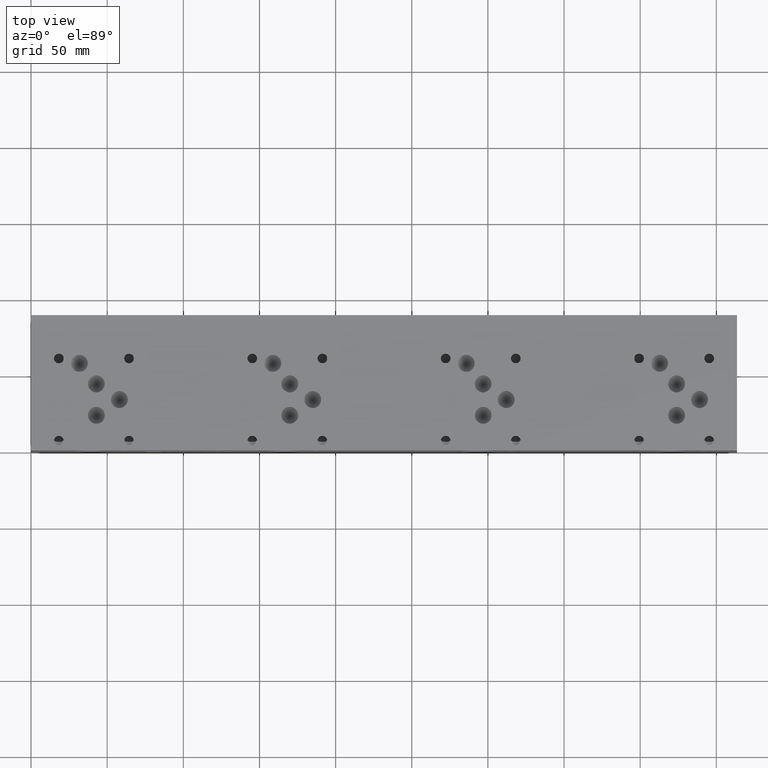
[diagram: clean part render]
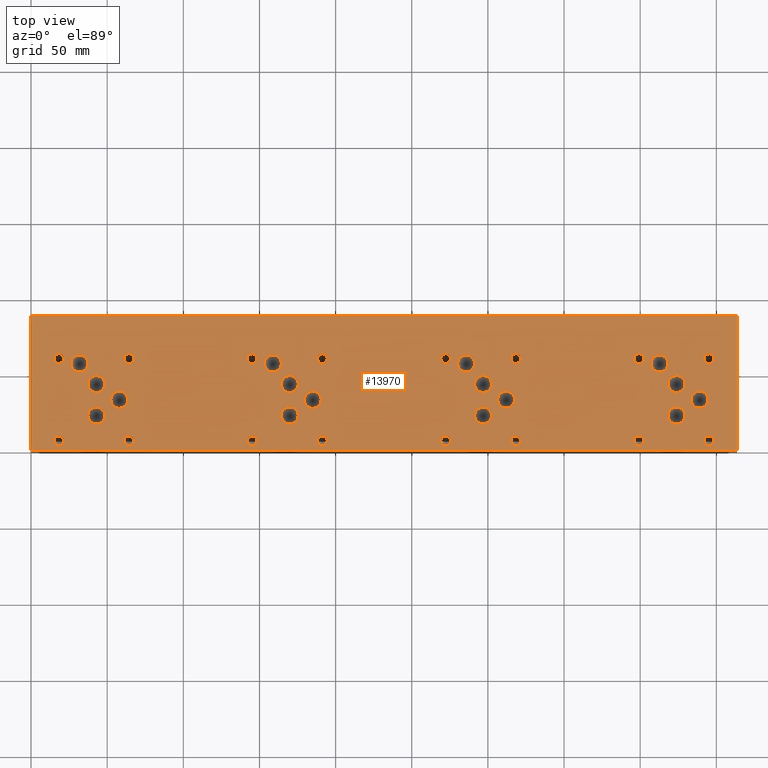
[diagram: same view with one face highlighted and labeled with its STEP entity id]
A machine part, top view. The second image highlights one B-rep face of the part: STEP entity #13970.
In plain terms, the highlighted planar face has unit normal (0, 0, 1).
Its self-contained STEP definition (entity closure, byte-faithful):
#948=CIRCLE('',#14558,5.5626);
#949=CIRCLE('',#14559,5.5626);
#952=CIRCLE('',#14564,5.5626);
#953=CIRCLE('',#14565,5.5626);
#956=CIRCLE('',#14570,5.5626);
#957=CIRCLE('',#14571,5.5626);
#960=CIRCLE('',#14576,5.5626);
#961=CIRCLE('',#14577,5.5626);
#964=CIRCLE('',#14582,5.5626);
#965=CIRCLE('',#14583,5.5626);
#968=CIRCLE('',#14588,5.5626);
#969=CIRCLE('',#14589,5.5626);
#972=CIRCLE('',#14594,5.5626);
#973=CIRCLE('',#14595,5.5626);
#976=CIRCLE('',#14600,5.5626);
#977=CIRCLE('',#14601,5.5626);
#980=CIRCLE('',#14606,5.5626);
#981=CIRCLE('',#14607,5.5626);
#984=CIRCLE('',#14612,5.5626);
#985=CIRCLE('',#14613,5.5626);
#988=CIRCLE('',#14618,5.5626);
#989=CIRCLE('',#14619,5.5626);
#992=CIRCLE('',#14624,5.5626);
#993=CIRCLE('',#14625,5.5626);
#996=CIRCLE('',#14630,5.5626);
#997=CIRCLE('',#14631,5.5626);
#1000=CIRCLE('',#14636,5.5626);
#1001=CIRCLE('',#14637,5.5626);
#1004=CIRCLE('',#14642,5.5626);
#1005=CIRCLE('',#14643,5.5626);
#1008=CIRCLE('',#14648,5.5626);
#1009=CIRCLE('',#14649,5.5626);
#1015=CIRCLE('',#14658,3.175);
#1016=CIRCLE('',#14659,3.175);
#1022=CIRCLE('',#14669,3.175);
#1023=CIRCLE('',#14670,3.175);
#1029=CIRCLE('',#14680,3.175);
#1030=CIRCLE('',#14681,3.175);
#1036=CIRCLE('',#14691,3.175);
#1037=CIRCLE('',#14692,3.175);
#1043=CIRCLE('',#14702,3.175);
#1044=CIRCLE('',#14703,3.175);
#1050=CIRCLE('',#14713,3.175);
#1051=CIRCLE('',#14714,3.175);
#1057=CIRCLE('',#14724,3.175);
#1058=CIRCLE('',#14725,3.175);
#1064=CIRCLE('',#14735,3.175);
#1065=CIRCLE('',#14736,3.175);
#1071=CIRCLE('',#14746,3.175);
#1072=CIRCLE('',#14747,3.175);
#1078=CIRCLE('',#14757,3.175);
#1079=CIRCLE('',#14758,3.175);
#1085=CIRCLE('',#14768,3.175);
#1086=CIRCLE('',#14769,3.175);
#1092=CIRCLE('',#14779,3.175);
#1093=CIRCLE('',#14780,3.175);
#1099=CIRCLE('',#14790,3.175);
#1100=CIRCLE('',#14791,3.175);
#1106=CIRCLE('',#14801,3.175);
#1107=CIRCLE('',#14802,3.175);
#1113=CIRCLE('',#14812,3.175);
#1114=CIRCLE('',#14813,3.175);
#1120=CIRCLE('',#14823,3.175);
#1121=CIRCLE('',#14824,3.175);
#1564=FACE_BOUND('',#3139,.T.);
#1565=FACE_BOUND('',#3140,.T.);
#1566=FACE_BOUND('',#3141,.T.);
#1567=FACE_BOUND('',#3142,.T.);
#1568=FACE_BOUND('',#3143,.T.);
#1569=FACE_BOUND('',#3144,.T.);
#1570=FACE_BOUND('',#3145,.T.);
#1571=FACE_BOUND('',#3146,.T.);
#1572=FACE_BOUND('',#3147,.T.);
#1573=FACE_BOUND('',#3148,.T.);
#1574=FACE_BOUND('',#3149,.T.);
#1575=FACE_BOUND('',#3150,.T.);
#1576=FACE_BOUND('',#3151,.T.);
#1577=FACE_BOUND('',#3152,.T.);
#1578=FACE_BOUND('',#3153,.T.);
#1579=FACE_BOUND('',#3154,.T.);
#1580=FACE_BOUND('',#3155,.T.);
#1581=FACE_BOUND('',#3156,.T.);
#1582=FACE_BOUND('',#3157,.T.);
#1583=FACE_BOUND('',#3158,.T.);
#1584=FACE_BOUND('',#3159,.T.);
#1585=FACE_BOUND('',#3160,.T.);
#1586=FACE_BOUND('',#3161,.T.);
#1587=FACE_BOUND('',#3162,.T.);
#1588=FACE_BOUND('',#3163,.T.);
#1589=FACE_BOUND('',#3164,.T.);
#1590=FACE_BOUND('',#3165,.T.);
#1591=FACE_BOUND('',#3166,.T.);
#1592=FACE_BOUND('',#3167,.T.);
#1593=FACE_BOUND('',#3168,.T.);
#1594=FACE_BOUND('',#3169,.T.);
#1595=FACE_BOUND('',#3170,.T.);
#2313=FACE_OUTER_BOUND('',#3138,.T.);
#3138=EDGE_LOOP('',(#12761,#12762,#12763,#12764));
#3139=EDGE_LOOP('',(#12765,#12766));
#3140=EDGE_LOOP('',(#12767,#12768));
#3141=EDGE_LOOP('',(#12769,#12770));
#3142=EDGE_LOOP('',(#12771,#12772));
#3143=EDGE_LOOP('',(#12773,#12774));
#3144=EDGE_LOOP('',(#12775,#12776));
#3145=EDGE_LOOP('',(#12777,#12778));
#3146=EDGE_LOOP('',(#12779,#12780));
#3147=EDGE_LOOP('',(#12781,#12782));
#3148=EDGE_LOOP('',(#12783,#12784));
#3149=EDGE_LOOP('',(#12785,#12786));
#3150=EDGE_LOOP('',(#12787,#12788));
#3151=EDGE_LOOP('',(#12789,#12790));
#3152=EDGE_LOOP('',(#12791,#12792));
#3153=EDGE_LOOP('',(#12793,#12794));
#3154=EDGE_LOOP('',(#12795,#12796));
#3155=EDGE_LOOP('',(#12797,#12798));
#3156=EDGE_LOOP('',(#12799,#12800));
#3157=EDGE_LOOP('',(#12801,#12802));
#3158=EDGE_LOOP('',(#12803,#12804));
#3159=EDGE_LOOP('',(#12805,#12806));
#3160=EDGE_LOOP('',(#12807,#12808));
#3161=EDGE_LOOP('',(#12809,#12810));
#3162=EDGE_LOOP('',(#12811,#12812));
#3163=EDGE_LOOP('',(#12813,#12814));
#3164=EDGE_LOOP('',(#12815,#12816));
#3165=EDGE_LOOP('',(#12817,#12818));
#3166=EDGE_LOOP('',(#12819,#12820));
#3167=EDGE_LOOP('',(#12821,#12822));
#3168=EDGE_LOOP('',(#12823,#12824));
#3169=EDGE_LOOP('',(#12825,#12826));
#3170=EDGE_LOOP('',(#12827,#12828));
#3207=LINE('',#17887,#4493);
#4175=LINE('',#22415,#5461);
#4235=LINE('',#22688,#5521);
#4457=LINE('',#23966,#5743);
#4493=VECTOR('',#14895,10.);
#5461=VECTOR('',#16527,10.);
#5521=VECTOR('',#16641,10.);
#5743=VECTOR('',#17803,10.);
#5768=VERTEX_POINT('',#17884);
#5769=VERTEX_POINT('',#17886);
#6637=VERTEX_POINT('',#22414);
#6695=VERTEX_POINT('',#22686);
#6877=VERTEX_POINT('',#23411);
#6878=VERTEX_POINT('',#23412);
#6882=VERTEX_POINT('',#23424);
#6883=VERTEX_POINT('',#23425);
#6887=VERTEX_POINT('',#23437);
#6888=VERTEX_POINT('',#23438);
#6892=VERTEX_POINT('',#23450);
#6893=VERTEX_POINT('',#23451);
#6897=VERTEX_POINT('',#23463);
#6898=VERTEX_POINT('',#23464);
#6902=VERTEX_POINT('',#23476);
#6903=VERTEX_POINT('',#23477);
#6907=VERTEX_POINT('',#23489);
#6908=VERTEX_POINT('',#23490);
#6912=VERTEX_POINT('',#23502);
#6913=VERTEX_POINT('',#23503);
#6917=VERTEX_POINT('',#23515);
#6918=VERTEX_POINT('',#23516);
#6922=VERTEX_POINT('',#23528);
#6923=VERTEX_POINT('',#23529);
#6927=VERTEX_POINT('',#23541);
#6928=VERTEX_POINT('',#23542);
#6932=VERTEX_POINT('',#23554);
#6933=VERTEX_POINT('',#23555);
#6937=VERTEX_POINT('',#23567);
#6938=VERTEX_POINT('',#23568);
#6942=VERTEX_POINT('',#23580);
#6943=VERTEX_POINT('',#23581);
#6947=VERTEX_POINT('',#23593);
#6948=VERTEX_POINT('',#23594);
#6952=VERTEX_POINT('',#23606);
#6953=VERTEX_POINT('',#23607);
#6960=VERTEX_POINT('',#23626);
#6961=VERTEX_POINT('',#23627);
#6968=VERTEX_POINT('',#23648);
#6969=VERTEX_POINT('',#23649);
#6976=VERTEX_POINT('',#23670);
#6977=VERTEX_POINT('',#23671);
#6984=VERTEX_POINT('',#23692);
#6985=VERTEX_POINT('',#23693);
#6992=VERTEX_POINT('',#23714);
#6993=VERTEX_POINT('',#23715);
#7000=VERTEX_POINT('',#23736);
#7001=VERTEX_POINT('',#23737);
#7008=VERTEX_POINT('',#23758);
#7009=VERTEX_POINT('',#23759);
#7016=VERTEX_POINT('',#23780);
#7017=VERTEX_POINT('',#23781);
#7024=VERTEX_POINT('',#23802);
#7025=VERTEX_POINT('',#23803);
#7032=VERTEX_POINT('',#23824);
#7033=VERTEX_POINT('',#23825);
#7040=VERTEX_POINT('',#23846);
#7041=VERTEX_POINT('',#23847);
#7048=VERTEX_POINT('',#23868);
#7049=VERTEX_POINT('',#23869);
#7056=VERTEX_POINT('',#23890);
#7057=VERTEX_POINT('',#23891);
#7064=VERTEX_POINT('',#23912);
#7065=VERTEX_POINT('',#23913);
#7072=VERTEX_POINT('',#23934);
#7073=VERTEX_POINT('',#23935);
#7080=VERTEX_POINT('',#23956);
#7081=VERTEX_POINT('',#23957);
#7117=EDGE_CURVE('',#5769,#5768,#3207,.T.);
#8401=EDGE_CURVE('',#6637,#5769,#4175,.T.);
#8485=EDGE_CURVE('',#5768,#6695,#4235,.T.);
#8744=EDGE_CURVE('',#6877,#6878,#948,.T.);
#8745=EDGE_CURVE('',#6878,#6877,#949,.T.);
#8750=EDGE_CURVE('',#6882,#6883,#952,.T.);
#8751=EDGE_CURVE('',#6883,#6882,#953,.T.);
#8756=EDGE_CURVE('',#6887,#6888,#956,.T.);
#8757=EDGE_CURVE('',#6888,#6887,#957,.T.);
#8762=EDGE_CURVE('',#6892,#6893,#960,.T.);
#8763=EDGE_CURVE('',#6893,#6892,#961,.T.);
#8768=EDGE_CURVE('',#6897,#6898,#964,.T.);
#8769=EDGE_CURVE('',#6898,#6897,#965,.T.);
#8774=EDGE_CURVE('',#6902,#6903,#968,.T.);
#8775=EDGE_CURVE('',#6903,#6902,#969,.T.);
#8780=EDGE_CURVE('',#6907,#6908,#972,.T.);
#8781=EDGE_CURVE('',#6908,#6907,#973,.T.);
#8786=EDGE_CURVE('',#6912,#6913,#976,.T.);
#8787=EDGE_CURVE('',#6913,#6912,#977,.T.);
#8792=EDGE_CURVE('',#6917,#6918,#980,.T.);
#8793=EDGE_CURVE('',#6918,#6917,#981,.T.);
#8798=EDGE_CURVE('',#6922,#6923,#984,.T.);
#8799=EDGE_CURVE('',#6923,#6922,#985,.T.);
#8804=EDGE_CURVE('',#6927,#6928,#988,.T.);
#8805=EDGE_CURVE('',#6928,#6927,#989,.T.);
#8810=EDGE_CURVE('',#6932,#6933,#992,.T.);
#8811=EDGE_CURVE('',#6933,#6932,#993,.T.);
#8816=EDGE_CURVE('',#6937,#6938,#996,.T.);
#8817=EDGE_CURVE('',#6938,#6937,#997,.T.);
#8822=EDGE_CURVE('',#6942,#6943,#1000,.T.);
#8823=EDGE_CURVE('',#6943,#6942,#1001,.T.);
#8828=EDGE_CURVE('',#6947,#6948,#1004,.T.);
#8829=EDGE_CURVE('',#6948,#6947,#1005,.T.);
#8834=EDGE_CURVE('',#6952,#6953,#1008,.T.);
#8835=EDGE_CURVE('',#6953,#6952,#1009,.T.);
#8843=EDGE_CURVE('',#6960,#6961,#1015,.T.);
#8844=EDGE_CURVE('',#6961,#6960,#1016,.T.);
#8853=EDGE_CURVE('',#6968,#6969,#1022,.T.);
#8854=EDGE_CURVE('',#6969,#6968,#1023,.T.);
#8863=EDGE_CURVE('',#6976,#6977,#1029,.T.);
#8864=EDGE_CURVE('',#6977,#6976,#1030,.T.);
#8873=EDGE_CURVE('',#6984,#6985,#1036,.T.);
#8874=EDGE_CURVE('',#6985,#6984,#1037,.T.);
#8883=EDGE_CURVE('',#6992,#6993,#1043,.T.);
#8884=EDGE_CURVE('',#6993,#6992,#1044,.T.);
#8893=EDGE_CURVE('',#7000,#7001,#1050,.T.);
#8894=EDGE_CURVE('',#7001,#7000,#1051,.T.);
#8903=EDGE_CURVE('',#7008,#7009,#1057,.T.);
#8904=EDGE_CURVE('',#7009,#7008,#1058,.T.);
#8913=EDGE_CURVE('',#7016,#7017,#1064,.T.);
#8914=EDGE_CURVE('',#7017,#7016,#1065,.T.);
#8923=EDGE_CURVE('',#7024,#7025,#1071,.T.);
#8924=EDGE_CURVE('',#7025,#7024,#1072,.T.);
#8933=EDGE_CURVE('',#7032,#7033,#1078,.T.);
#8934=EDGE_CURVE('',#7033,#7032,#1079,.T.);
#8943=EDGE_CURVE('',#7040,#7041,#1085,.T.);
#8944=EDGE_CURVE('',#7041,#7040,#1086,.T.);
#8953=EDGE_CURVE('',#7048,#7049,#1092,.T.);
#8954=EDGE_CURVE('',#7049,#7048,#1093,.T.);
#8963=EDGE_CURVE('',#7056,#7057,#1099,.T.);
#8964=EDGE_CURVE('',#7057,#7056,#1100,.T.);
#8973=EDGE_CURVE('',#7064,#7065,#1106,.T.);
#8974=EDGE_CURVE('',#7065,#7064,#1107,.T.);
#8983=EDGE_CURVE('',#7072,#7073,#1113,.T.);
#8984=EDGE_CURVE('',#7073,#7072,#1114,.T.);
#8993=EDGE_CURVE('',#7080,#7081,#1120,.T.);
#8994=EDGE_CURVE('',#7081,#7080,#1121,.T.);
#8998=EDGE_CURVE('',#6695,#6637,#4457,.T.);
#12761=ORIENTED_EDGE('',*,*,#7117,.T.);
#12762=ORIENTED_EDGE('',*,*,#8485,.T.);
#12763=ORIENTED_EDGE('',*,*,#8998,.T.);
#12764=ORIENTED_EDGE('',*,*,#8401,.T.);
#12765=ORIENTED_EDGE('',*,*,#8744,.T.);
#12766=ORIENTED_EDGE('',*,*,#8745,.T.);
#12767=ORIENTED_EDGE('',*,*,#8750,.T.);
#12768=ORIENTED_EDGE('',*,*,#8751,.T.);
#12769=ORIENTED_EDGE('',*,*,#8756,.T.);
#12770=ORIENTED_EDGE('',*,*,#8757,.T.);
#12771=ORIENTED_EDGE('',*,*,#8762,.T.);
#12772=ORIENTED_EDGE('',*,*,#8763,.T.);
#12773=ORIENTED_EDGE('',*,*,#8768,.T.);
#12774=ORIENTED_EDGE('',*,*,#8769,.T.);
#12775=ORIENTED_EDGE('',*,*,#8774,.T.);
#12776=ORIENTED_EDGE('',*,*,#8775,.T.);
#12777=ORIENTED_EDGE('',*,*,#8780,.T.);
#12778=ORIENTED_EDGE('',*,*,#8781,.T.);
#12779=ORIENTED_EDGE('',*,*,#8786,.T.);
#12780=ORIENTED_EDGE('',*,*,#8787,.T.);
#12781=ORIENTED_EDGE('',*,*,#8792,.T.);
#12782=ORIENTED_EDGE('',*,*,#8793,.T.);
#12783=ORIENTED_EDGE('',*,*,#8798,.T.);
#12784=ORIENTED_EDGE('',*,*,#8799,.T.);
#12785=ORIENTED_EDGE('',*,*,#8804,.T.);
#12786=ORIENTED_EDGE('',*,*,#8805,.T.);
#12787=ORIENTED_EDGE('',*,*,#8810,.T.);
#12788=ORIENTED_EDGE('',*,*,#8811,.T.);
#12789=ORIENTED_EDGE('',*,*,#8816,.T.);
#12790=ORIENTED_EDGE('',*,*,#8817,.T.);
#12791=ORIENTED_EDGE('',*,*,#8822,.T.);
#12792=ORIENTED_EDGE('',*,*,#8823,.T.);
#12793=ORIENTED_EDGE('',*,*,#8828,.T.);
#12794=ORIENTED_EDGE('',*,*,#8829,.T.);
#12795=ORIENTED_EDGE('',*,*,#8834,.T.);
#12796=ORIENTED_EDGE('',*,*,#8835,.T.);
#12797=ORIENTED_EDGE('',*,*,#8843,.T.);
#12798=ORIENTED_EDGE('',*,*,#8844,.T.);
#12799=ORIENTED_EDGE('',*,*,#8853,.T.);
#12800=ORIENTED_EDGE('',*,*,#8854,.T.);
#12801=ORIENTED_EDGE('',*,*,#8863,.T.);
#12802=ORIENTED_EDGE('',*,*,#8864,.T.);
#12803=ORIENTED_EDGE('',*,*,#8873,.T.);
#12804=ORIENTED_EDGE('',*,*,#8874,.T.);
#12805=ORIENTED_EDGE('',*,*,#8883,.T.);
#12806=ORIENTED_EDGE('',*,*,#8884,.T.);
#12807=ORIENTED_EDGE('',*,*,#8893,.T.);
#12808=ORIENTED_EDGE('',*,*,#8894,.T.);
#12809=ORIENTED_EDGE('',*,*,#8903,.T.);
#12810=ORIENTED_EDGE('',*,*,#8904,.T.);
#12811=ORIENTED_EDGE('',*,*,#8913,.T.);
#12812=ORIENTED_EDGE('',*,*,#8914,.T.);
#12813=ORIENTED_EDGE('',*,*,#8923,.T.);
#12814=ORIENTED_EDGE('',*,*,#8924,.T.);
#12815=ORIENTED_EDGE('',*,*,#8933,.T.);
#12816=ORIENTED_EDGE('',*,*,#8934,.T.);
#12817=ORIENTED_EDGE('',*,*,#8943,.T.);
#12818=ORIENTED_EDGE('',*,*,#8944,.T.);
#12819=ORIENTED_EDGE('',*,*,#8953,.T.);
#12820=ORIENTED_EDGE('',*,*,#8954,.T.);
#12821=ORIENTED_EDGE('',*,*,#8963,.T.);
#12822=ORIENTED_EDGE('',*,*,#8964,.T.);
#12823=ORIENTED_EDGE('',*,*,#8973,.T.);
#12824=ORIENTED_EDGE('',*,*,#8974,.T.);
#12825=ORIENTED_EDGE('',*,*,#8983,.T.);
#12826=ORIENTED_EDGE('',*,*,#8984,.T.);
#12827=ORIENTED_EDGE('',*,*,#8993,.T.);
#12828=ORIENTED_EDGE('',*,*,#8994,.T.);
#13251=PLANE('',#14830);
#13970=ADVANCED_FACE('',(#2313,#1564,#1565,#1566,#1567,#1568,#1569,#1570,
#1571,#1572,#1573,#1574,#1575,#1576,#1577,#1578,#1579,#1580,#1581,#1582,
#1583,#1584,#1585,#1586,#1587,#1588,#1589,#1590,#1591,#1592,#1593,#1594,
#1595),#13251,.T.);
#14558=AXIS2_PLACEMENT_3D('',#23413,#17183,#17184);
#14559=AXIS2_PLACEMENT_3D('',#23414,#17185,#17186);
#14564=AXIS2_PLACEMENT_3D('',#23426,#17197,#17198);
#14565=AXIS2_PLACEMENT_3D('',#23427,#17199,#17200);
#14570=AXIS2_PLACEMENT_3D('',#23439,#17211,#17212);
#14571=AXIS2_PLACEMENT_3D('',#23440,#17213,#17214);
#14576=AXIS2_PLACEMENT_3D('',#23452,#17225,#17226);
#14577=AXIS2_PLACEMENT_3D('',#23453,#17227,#17228);
#14582=AXIS2_PLACEMENT_3D('',#23465,#17239,#17240);
#14583=AXIS2_PLACEMENT_3D('',#23466,#17241,#17242);
#14588=AXIS2_PLACEMENT_3D('',#23478,#17253,#17254);
#14589=AXIS2_PLACEMENT_3D('',#23479,#17255,#17256);
#14594=AXIS2_PLACEMENT_3D('',#23491,#17267,#17268);
#14595=AXIS2_PLACEMENT_3D('',#23492,#17269,#17270);
#14600=AXIS2_PLACEMENT_3D('',#23504,#17281,#17282);
#14601=AXIS2_PLACEMENT_3D('',#23505,#17283,#17284);
#14606=AXIS2_PLACEMENT_3D('',#23517,#17295,#17296);
#14607=AXIS2_PLACEMENT_3D('',#23518,#17297,#17298);
#14612=AXIS2_PLACEMENT_3D('',#23530,#17309,#17310);
#14613=AXIS2_PLACEMENT_3D('',#23531,#17311,#17312);
#14618=AXIS2_PLACEMENT_3D('',#23543,#17323,#17324);
#14619=AXIS2_PLACEMENT_3D('',#23544,#17325,#17326);
#14624=AXIS2_PLACEMENT_3D('',#23556,#17337,#17338);
#14625=AXIS2_PLACEMENT_3D('',#23557,#17339,#17340);
#14630=AXIS2_PLACEMENT_3D('',#23569,#17351,#17352);
#14631=AXIS2_PLACEMENT_3D('',#23570,#17353,#17354);
#14636=AXIS2_PLACEMENT_3D('',#23582,#17365,#17366);
#14637=AXIS2_PLACEMENT_3D('',#23583,#17367,#17368);
#14642=AXIS2_PLACEMENT_3D('',#23595,#17379,#17380);
#14643=AXIS2_PLACEMENT_3D('',#23596,#17381,#17382);
#14648=AXIS2_PLACEMENT_3D('',#23608,#17393,#17394);
#14649=AXIS2_PLACEMENT_3D('',#23609,#17395,#17396);
#14658=AXIS2_PLACEMENT_3D('',#23628,#17415,#17416);
#14659=AXIS2_PLACEMENT_3D('',#23629,#17417,#17418);
#14669=AXIS2_PLACEMENT_3D('',#23650,#17440,#17441);
#14670=AXIS2_PLACEMENT_3D('',#23651,#17442,#17443);
#14680=AXIS2_PLACEMENT_3D('',#23672,#17465,#17466);
#14681=AXIS2_PLACEMENT_3D('',#23673,#17467,#17468);
#14691=AXIS2_PLACEMENT_3D('',#23694,#17490,#17491);
#14692=AXIS2_PLACEMENT_3D('',#23695,#17492,#17493);
#14702=AXIS2_PLACEMENT_3D('',#23716,#17515,#17516);
#14703=AXIS2_PLACEMENT_3D('',#23717,#17517,#17518);
#14713=AXIS2_PLACEMENT_3D('',#23738,#17540,#17541);
#14714=AXIS2_PLACEMENT_3D('',#23739,#17542,#17543);
#14724=AXIS2_PLACEMENT_3D('',#23760,#17565,#17566);
#14725=AXIS2_PLACEMENT_3D('',#23761,#17567,#17568);
#14735=AXIS2_PLACEMENT_3D('',#23782,#17590,#17591);
#14736=AXIS2_PLACEMENT_3D('',#23783,#17592,#17593);
#14746=AXIS2_PLACEMENT_3D('',#23804,#17615,#17616);
#14747=AXIS2_PLACEMENT_3D('',#23805,#17617,#17618);
#14757=AXIS2_PLACEMENT_3D('',#23826,#17640,#17641);
#14758=AXIS2_PLACEMENT_3D('',#23827,#17642,#17643);
#14768=AXIS2_PLACEMENT_3D('',#23848,#17665,#17666);
#14769=AXIS2_PLACEMENT_3D('',#23849,#17667,#17668);
#14779=AXIS2_PLACEMENT_3D('',#23870,#17690,#17691);
#14780=AXIS2_PLACEMENT_3D('',#23871,#17692,#17693);
#14790=AXIS2_PLACEMENT_3D('',#23892,#17715,#17716);
#14791=AXIS2_PLACEMENT_3D('',#23893,#17717,#17718);
#14801=AXIS2_PLACEMENT_3D('',#23914,#17740,#17741);
#14802=AXIS2_PLACEMENT_3D('',#23915,#17742,#17743);
#14812=AXIS2_PLACEMENT_3D('',#23936,#17765,#17766);
#14813=AXIS2_PLACEMENT_3D('',#23937,#17767,#17768);
#14823=AXIS2_PLACEMENT_3D('',#23958,#17790,#17791);
#14824=AXIS2_PLACEMENT_3D('',#23959,#17792,#17793);
#14830=AXIS2_PLACEMENT_3D('',#23969,#17808,#17809);
#14895=DIRECTION('',(1.,0.,0.));
#16527=DIRECTION('',(0.,-1.,0.));
#16641=DIRECTION('',(0.,1.,0.));
#17183=DIRECTION('center_axis',(0.,0.,-1.));
#17184=DIRECTION('ref_axis',(1.,0.,0.));
#17185=DIRECTION('center_axis',(0.,0.,-1.));
#17186=DIRECTION('ref_axis',(1.,0.,0.));
#17197=DIRECTION('center_axis',(0.,0.,-1.));
#17198=DIRECTION('ref_axis',(1.,0.,0.));
#17199=DIRECTION('center_axis',(0.,0.,-1.));
#17200=DIRECTION('ref_axis',(1.,0.,0.));
#17211=DIRECTION('center_axis',(0.,0.,-1.));
#17212=DIRECTION('ref_axis',(1.,0.,0.));
#17213=DIRECTION('center_axis',(0.,0.,-1.));
#17214=DIRECTION('ref_axis',(1.,0.,0.));
#17225=DIRECTION('center_axis',(0.,0.,-1.));
#17226=DIRECTION('ref_axis',(1.,0.,0.));
#17227=DIRECTION('center_axis',(0.,0.,-1.));
#17228=DIRECTION('ref_axis',(1.,0.,0.));
#17239=DIRECTION('center_axis',(0.,0.,-1.));
#17240=DIRECTION('ref_axis',(1.,0.,0.));
#17241=DIRECTION('center_axis',(0.,0.,-1.));
#17242=DIRECTION('ref_axis',(1.,0.,0.));
#17253=DIRECTION('center_axis',(0.,0.,-1.));
#17254=DIRECTION('ref_axis',(1.,0.,0.));
#17255=DIRECTION('center_axis',(0.,0.,-1.));
#17256=DIRECTION('ref_axis',(1.,0.,0.));
#17267=DIRECTION('center_axis',(0.,0.,-1.));
#17268=DIRECTION('ref_axis',(1.,0.,0.));
#17269=DIRECTION('center_axis',(0.,0.,-1.));
#17270=DIRECTION('ref_axis',(1.,0.,0.));
#17281=DIRECTION('center_axis',(0.,0.,-1.));
#17282=DIRECTION('ref_axis',(1.,0.,0.));
#17283=DIRECTION('center_axis',(0.,0.,-1.));
#17284=DIRECTION('ref_axis',(1.,0.,0.));
#17295=DIRECTION('center_axis',(0.,0.,-1.));
#17296=DIRECTION('ref_axis',(1.,0.,0.));
#17297=DIRECTION('center_axis',(0.,0.,-1.));
#17298=DIRECTION('ref_axis',(1.,0.,0.));
#17309=DIRECTION('center_axis',(0.,0.,-1.));
#17310=DIRECTION('ref_axis',(1.,0.,0.));
#17311=DIRECTION('center_axis',(0.,0.,-1.));
#17312=DIRECTION('ref_axis',(1.,0.,0.));
#17323=DIRECTION('center_axis',(0.,0.,-1.));
#17324=DIRECTION('ref_axis',(1.,0.,0.));
#17325=DIRECTION('center_axis',(0.,0.,-1.));
#17326=DIRECTION('ref_axis',(1.,0.,0.));
#17337=DIRECTION('center_axis',(0.,0.,-1.));
#17338=DIRECTION('ref_axis',(1.,0.,0.));
#17339=DIRECTION('center_axis',(0.,0.,-1.));
#17340=DIRECTION('ref_axis',(1.,0.,0.));
#17351=DIRECTION('center_axis',(0.,0.,-1.));
#17352=DIRECTION('ref_axis',(1.,0.,0.));
#17353=DIRECTION('center_axis',(0.,0.,-1.));
#17354=DIRECTION('ref_axis',(1.,0.,0.));
#17365=DIRECTION('center_axis',(0.,0.,-1.));
#17366=DIRECTION('ref_axis',(1.,0.,0.));
#17367=DIRECTION('center_axis',(0.,0.,-1.));
#17368=DIRECTION('ref_axis',(1.,0.,0.));
#17379=DIRECTION('center_axis',(0.,0.,-1.));
#17380=DIRECTION('ref_axis',(1.,0.,0.));
#17381=DIRECTION('center_axis',(0.,0.,-1.));
#17382=DIRECTION('ref_axis',(1.,0.,0.));
#17393=DIRECTION('center_axis',(0.,0.,-1.));
#17394=DIRECTION('ref_axis',(1.,0.,0.));
#17395=DIRECTION('center_axis',(0.,0.,-1.));
#17396=DIRECTION('ref_axis',(1.,0.,0.));
#17415=DIRECTION('center_axis',(0.,0.,-1.));
#17416=DIRECTION('ref_axis',(1.,0.,0.));
#17417=DIRECTION('center_axis',(0.,0.,-1.));
#17418=DIRECTION('ref_axis',(1.,0.,0.));
#17440=DIRECTION('center_axis',(0.,0.,-1.));
#17441=DIRECTION('ref_axis',(1.,0.,0.));
#17442=DIRECTION('center_axis',(0.,0.,-1.));
#17443=DIRECTION('ref_axis',(1.,0.,0.));
#17465=DIRECTION('center_axis',(0.,0.,-1.));
#17466=DIRECTION('ref_axis',(1.,0.,0.));
#17467=DIRECTION('center_axis',(0.,0.,-1.));
#17468=DIRECTION('ref_axis',(1.,0.,0.));
#17490=DIRECTION('center_axis',(0.,0.,-1.));
#17491=DIRECTION('ref_axis',(1.,0.,0.));
#17492=DIRECTION('center_axis',(0.,0.,-1.));
#17493=DIRECTION('ref_axis',(1.,0.,0.));
#17515=DIRECTION('center_axis',(0.,0.,-1.));
#17516=DIRECTION('ref_axis',(1.,0.,0.));
#17517=DIRECTION('center_axis',(0.,0.,-1.));
#17518=DIRECTION('ref_axis',(1.,0.,0.));
#17540=DIRECTION('center_axis',(0.,0.,-1.));
#17541=DIRECTION('ref_axis',(1.,0.,0.));
#17542=DIRECTION('center_axis',(0.,0.,-1.));
#17543=DIRECTION('ref_axis',(1.,0.,0.));
#17565=DIRECTION('center_axis',(0.,0.,-1.));
#17566=DIRECTION('ref_axis',(1.,0.,0.));
#17567=DIRECTION('center_axis',(0.,0.,-1.));
#17568=DIRECTION('ref_axis',(1.,0.,0.));
#17590=DIRECTION('center_axis',(0.,0.,-1.));
#17591=DIRECTION('ref_axis',(1.,0.,0.));
#17592=DIRECTION('center_axis',(0.,0.,-1.));
#17593=DIRECTION('ref_axis',(1.,0.,0.));
#17615=DIRECTION('center_axis',(0.,0.,-1.));
#17616=DIRECTION('ref_axis',(1.,0.,0.));
#17617=DIRECTION('center_axis',(0.,0.,-1.));
#17618=DIRECTION('ref_axis',(1.,0.,0.));
#17640=DIRECTION('center_axis',(0.,0.,-1.));
#17641=DIRECTION('ref_axis',(1.,0.,0.));
#17642=DIRECTION('center_axis',(0.,0.,-1.));
#17643=DIRECTION('ref_axis',(1.,0.,0.));
#17665=DIRECTION('center_axis',(0.,0.,-1.));
#17666=DIRECTION('ref_axis',(1.,0.,0.));
#17667=DIRECTION('center_axis',(0.,0.,-1.));
#17668=DIRECTION('ref_axis',(1.,0.,0.));
#17690=DIRECTION('center_axis',(0.,0.,-1.));
#17691=DIRECTION('ref_axis',(1.,0.,0.));
#17692=DIRECTION('center_axis',(0.,0.,-1.));
#17693=DIRECTION('ref_axis',(1.,0.,0.));
#17715=DIRECTION('center_axis',(0.,0.,-1.));
#17716=DIRECTION('ref_axis',(1.,0.,0.));
#17717=DIRECTION('center_axis',(0.,0.,-1.));
#17718=DIRECTION('ref_axis',(1.,0.,0.));
#17740=DIRECTION('center_axis',(0.,0.,-1.));
#17741=DIRECTION('ref_axis',(1.,0.,0.));
#17742=DIRECTION('center_axis',(0.,0.,-1.));
#17743=DIRECTION('ref_axis',(1.,0.,0.));
#17765=DIRECTION('center_axis',(0.,0.,-1.));
#17766=DIRECTION('ref_axis',(1.,0.,0.));
#17767=DIRECTION('center_axis',(0.,0.,-1.));
#17768=DIRECTION('ref_axis',(1.,0.,0.));
#17790=DIRECTION('center_axis',(0.,0.,-1.));
#17791=DIRECTION('ref_axis',(1.,0.,0.));
#17792=DIRECTION('center_axis',(0.,0.,-1.));
#17793=DIRECTION('ref_axis',(1.,0.,0.));
#17803=DIRECTION('',(-1.,0.,0.));
#17808=DIRECTION('center_axis',(0.,0.,1.));
#17809=DIRECTION('ref_axis',(1.,0.,0.));
#17884=CARTESIAN_POINT('',(463.55,0.,88.9));
#17886=CARTESIAN_POINT('',(0.,0.,88.9));
#17887=CARTESIAN_POINT('',(0.,0.,88.9));
#22414=CARTESIAN_POINT('',(0.,88.9,88.9));
#22415=CARTESIAN_POINT('',(0.,88.9,88.9));
#22686=CARTESIAN_POINT('',(463.55,88.9,88.9));
#22688=CARTESIAN_POINT('',(463.55,0.,88.9));
#23411=CARTESIAN_POINT('',(429.4378,43.6499,88.9));
#23412=CARTESIAN_POINT('',(418.3126,43.6499,88.9));
#23413=CARTESIAN_POINT('Origin',(423.8752,43.6499,88.9));
#23414=CARTESIAN_POINT('Origin',(423.8752,43.6499,88.9));
#23424=CARTESIAN_POINT('',(444.5254,33.3629,88.9));
#23425=CARTESIAN_POINT('',(433.4002,33.3629,88.9));
#23426=CARTESIAN_POINT('Origin',(438.9628,33.3629,88.9));
#23427=CARTESIAN_POINT('Origin',(438.9628,33.3629,88.9));
#23437=CARTESIAN_POINT('',(302.4378,43.6499,88.9));
#23438=CARTESIAN_POINT('',(291.3126,43.6499,88.9));
#23439=CARTESIAN_POINT('Origin',(296.8752,43.6499,88.9));
#23440=CARTESIAN_POINT('Origin',(296.8752,43.6499,88.9));
#23450=CARTESIAN_POINT('',(317.5254,33.3629,88.9));
#23451=CARTESIAN_POINT('',(306.4002,33.3629,88.9));
#23452=CARTESIAN_POINT('Origin',(311.9628,33.3629,88.9));
#23453=CARTESIAN_POINT('Origin',(311.9628,33.3629,88.9));
#23463=CARTESIAN_POINT('',(175.4378,43.6499,88.9));
#23464=CARTESIAN_POINT('',(164.3126,43.6499,88.9));
#23465=CARTESIAN_POINT('Origin',(169.8752,43.6499,88.9));
#23466=CARTESIAN_POINT('Origin',(169.8752,43.6499,88.9));
#23476=CARTESIAN_POINT('',(190.5254,33.3375,88.9));
#23477=CARTESIAN_POINT('',(179.4002,33.3375,88.9));
#23478=CARTESIAN_POINT('Origin',(184.9628,33.3375,88.9));
#23479=CARTESIAN_POINT('Origin',(184.9628,33.3375,88.9));
#23489=CARTESIAN_POINT('',(48.4251,43.64228,88.9));
#23490=CARTESIAN_POINT('',(37.2999,43.64228,88.9));
#23491=CARTESIAN_POINT('Origin',(42.8625,43.64228,88.9));
#23492=CARTESIAN_POINT('Origin',(42.8625,43.64228,88.9));
#23502=CARTESIAN_POINT('',(63.5254,33.3248,88.9));
#23503=CARTESIAN_POINT('',(52.4002,33.3248,88.9));
#23504=CARTESIAN_POINT('Origin',(57.9628,33.3248,88.9));
#23505=CARTESIAN_POINT('Origin',(57.9628,33.3248,88.9));
#23515=CARTESIAN_POINT('',(37.3126,57.15,88.9));
#23516=CARTESIAN_POINT('',(26.1874,57.15,88.9));
#23517=CARTESIAN_POINT('Origin',(31.75,57.15,88.9));
#23518=CARTESIAN_POINT('Origin',(31.75,57.15,88.9));
#23528=CARTESIAN_POINT('',(48.43018,23.00732,88.9));
#23529=CARTESIAN_POINT('',(37.30498,23.00732,88.9));
#23530=CARTESIAN_POINT('Origin',(42.86758,23.00732,88.9));
#23531=CARTESIAN_POINT('Origin',(42.86758,23.00732,88.9));
#23541=CARTESIAN_POINT('',(164.3126,57.1627,88.9));
#23542=CARTESIAN_POINT('',(153.1874,57.1627,88.9));
#23543=CARTESIAN_POINT('Origin',(158.75,57.1627,88.9));
#23544=CARTESIAN_POINT('Origin',(158.75,57.1627,88.9));
#23554=CARTESIAN_POINT('',(175.4378,23.0251,88.9));
#23555=CARTESIAN_POINT('',(164.3126,23.0251,88.9));
#23556=CARTESIAN_POINT('Origin',(169.8752,23.0251,88.9));
#23557=CARTESIAN_POINT('Origin',(169.8752,23.0251,88.9));
#23567=CARTESIAN_POINT('',(291.3126,57.1627,88.9));
#23568=CARTESIAN_POINT('',(280.1874,57.1627,88.9));
#23569=CARTESIAN_POINT('Origin',(285.75,57.1627,88.9));
#23570=CARTESIAN_POINT('Origin',(285.75,57.1627,88.9));
#23580=CARTESIAN_POINT('',(302.4378,23.0251,88.9));
#23581=CARTESIAN_POINT('',(291.3126,23.0251,88.9));
#23582=CARTESIAN_POINT('Origin',(296.8752,23.0251,88.9));
#23583=CARTESIAN_POINT('Origin',(296.8752,23.0251,88.9));
#23593=CARTESIAN_POINT('',(418.3126,57.1627,88.9));
#23594=CARTESIAN_POINT('',(407.1874,57.1627,88.9));
#23595=CARTESIAN_POINT('Origin',(412.75,57.1627,88.9));
#23596=CARTESIAN_POINT('Origin',(412.75,57.1627,88.9));
#23606=CARTESIAN_POINT('',(429.4378,23.0251,88.9));
#23607=CARTESIAN_POINT('',(418.3126,23.0251,88.9));
#23608=CARTESIAN_POINT('Origin',(423.8752,23.0251,88.9));
#23609=CARTESIAN_POINT('Origin',(423.8752,23.0251,88.9));
#23626=CARTESIAN_POINT('',(448.4624,6.3627,88.9));
#23627=CARTESIAN_POINT('',(442.1124,6.3627,88.9));
#23628=CARTESIAN_POINT('Origin',(445.2874,6.3627,88.9));
#23629=CARTESIAN_POINT('Origin',(445.2874,6.3627,88.9));
#23648=CARTESIAN_POINT('',(402.4122,60.3377,88.9));
#23649=CARTESIAN_POINT('',(396.0622,60.3377,88.9));
#23650=CARTESIAN_POINT('Origin',(399.2372,60.3377,88.9));
#23651=CARTESIAN_POINT('Origin',(399.2372,60.3377,88.9));
#23670=CARTESIAN_POINT('',(321.4624,6.3627,88.9));
#23671=CARTESIAN_POINT('',(315.1124,6.3627,88.9));
#23672=CARTESIAN_POINT('Origin',(318.2874,6.3627,88.9));
#23673=CARTESIAN_POINT('Origin',(318.2874,6.3627,88.9));
#23692=CARTESIAN_POINT('',(275.4122,60.3377,88.9));
#23693=CARTESIAN_POINT('',(269.0622,60.3377,88.9));
#23694=CARTESIAN_POINT('Origin',(272.2372,60.3377,88.9));
#23695=CARTESIAN_POINT('Origin',(272.2372,60.3377,88.9));
#23714=CARTESIAN_POINT('',(194.4624,6.3627,88.9));
#23715=CARTESIAN_POINT('',(188.1124,6.3627,88.9));
#23716=CARTESIAN_POINT('Origin',(191.2874,6.3627,88.9));
#23717=CARTESIAN_POINT('Origin',(191.2874,6.3627,88.9));
#23736=CARTESIAN_POINT('',(148.4122,60.3377,88.9));
#23737=CARTESIAN_POINT('',(142.0622,60.3377,88.9));
#23738=CARTESIAN_POINT('Origin',(145.2372,60.3377,88.9));
#23739=CARTESIAN_POINT('Origin',(145.2372,60.3377,88.9));
#23758=CARTESIAN_POINT('',(67.4624,6.3627,88.9));
#23759=CARTESIAN_POINT('',(61.1124,6.3627,88.9));
#23760=CARTESIAN_POINT('Origin',(64.2874,6.3627,88.9));
#23761=CARTESIAN_POINT('Origin',(64.2874,6.3627,88.9));
#23780=CARTESIAN_POINT('',(21.4122,60.325,88.9));
#23781=CARTESIAN_POINT('',(15.0622,60.325,88.9));
#23782=CARTESIAN_POINT('Origin',(18.2372,60.325,88.9));
#23783=CARTESIAN_POINT('Origin',(18.2372,60.325,88.9));
#23802=CARTESIAN_POINT('',(67.4624,60.325,88.9));
#23803=CARTESIAN_POINT('',(61.1124,60.325,88.9));
#23804=CARTESIAN_POINT('Origin',(64.2874,60.325,88.9));
#23805=CARTESIAN_POINT('Origin',(64.2874,60.325,88.9));
#23824=CARTESIAN_POINT('',(21.4122,6.35,88.9));
#23825=CARTESIAN_POINT('',(15.0622,6.35,88.9));
#23826=CARTESIAN_POINT('Origin',(18.2372,6.35,88.9));
#23827=CARTESIAN_POINT('Origin',(18.2372,6.35,88.9));
#23846=CARTESIAN_POINT('',(194.4624,60.3377,88.9));
#23847=CARTESIAN_POINT('',(188.1124,60.3377,88.9));
#23848=CARTESIAN_POINT('Origin',(191.2874,60.3377,88.9));
#23849=CARTESIAN_POINT('Origin',(191.2874,60.3377,88.9));
#23868=CARTESIAN_POINT('',(148.4122,6.3627,88.9));
#23869=CARTESIAN_POINT('',(142.0622,6.3627,88.9));
#23870=CARTESIAN_POINT('Origin',(145.2372,6.3627,88.9));
#23871=CARTESIAN_POINT('Origin',(145.2372,6.3627,88.9));
#23890=CARTESIAN_POINT('',(321.4624,60.3377,88.9));
#23891=CARTESIAN_POINT('',(315.1124,60.3377,88.9));
#23892=CARTESIAN_POINT('Origin',(318.2874,60.3377,88.9));
#23893=CARTESIAN_POINT('Origin',(318.2874,60.3377,88.9));
#23912=CARTESIAN_POINT('',(275.4122,6.3627,88.9));
#23913=CARTESIAN_POINT('',(269.0622,6.3627,88.9));
#23914=CARTESIAN_POINT('Origin',(272.2372,6.3627,88.9));
#23915=CARTESIAN_POINT('Origin',(272.2372,6.3627,88.9));
#23934=CARTESIAN_POINT('',(448.4624,60.3377,88.9));
#23935=CARTESIAN_POINT('',(442.1124,60.3377,88.9));
#23936=CARTESIAN_POINT('Origin',(445.2874,60.3377,88.9));
#23937=CARTESIAN_POINT('Origin',(445.2874,60.3377,88.9));
#23956=CARTESIAN_POINT('',(402.4122,6.3627,88.9));
#23957=CARTESIAN_POINT('',(396.0622,6.3627,88.9));
#23958=CARTESIAN_POINT('Origin',(399.2372,6.3627,88.9));
#23959=CARTESIAN_POINT('Origin',(399.2372,6.3627,88.9));
#23966=CARTESIAN_POINT('',(463.55,88.9,88.9));
#23969=CARTESIAN_POINT('Origin',(231.775,44.45,88.9));